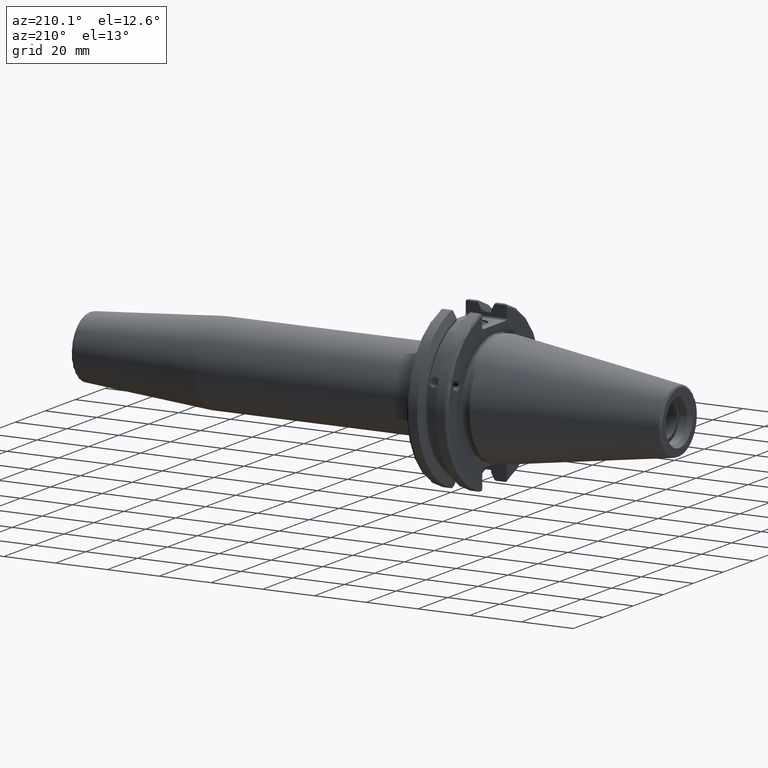
[diagram: clean part render]
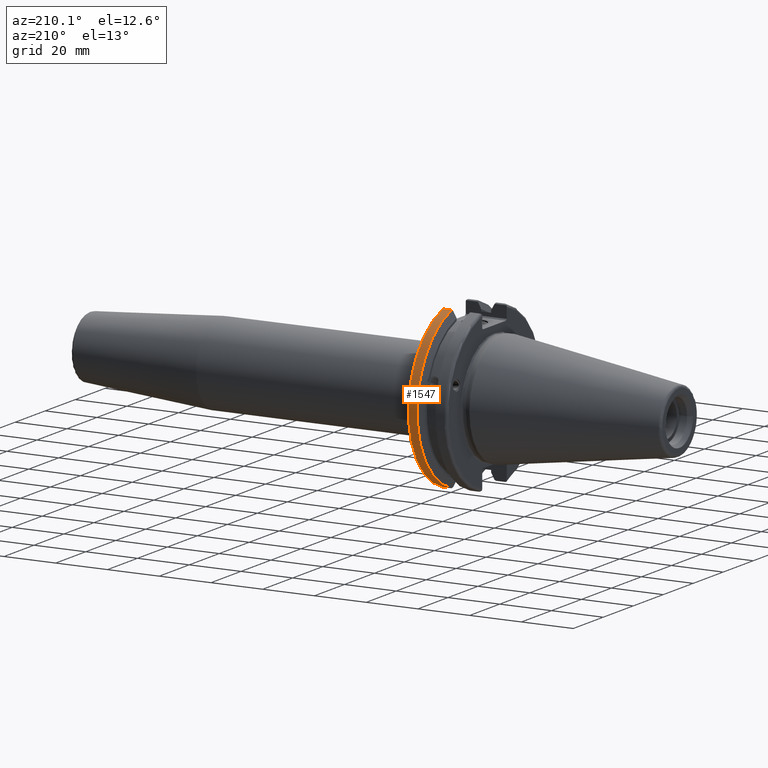
[diagram: same view with one face highlighted and labeled with its STEP entity id]
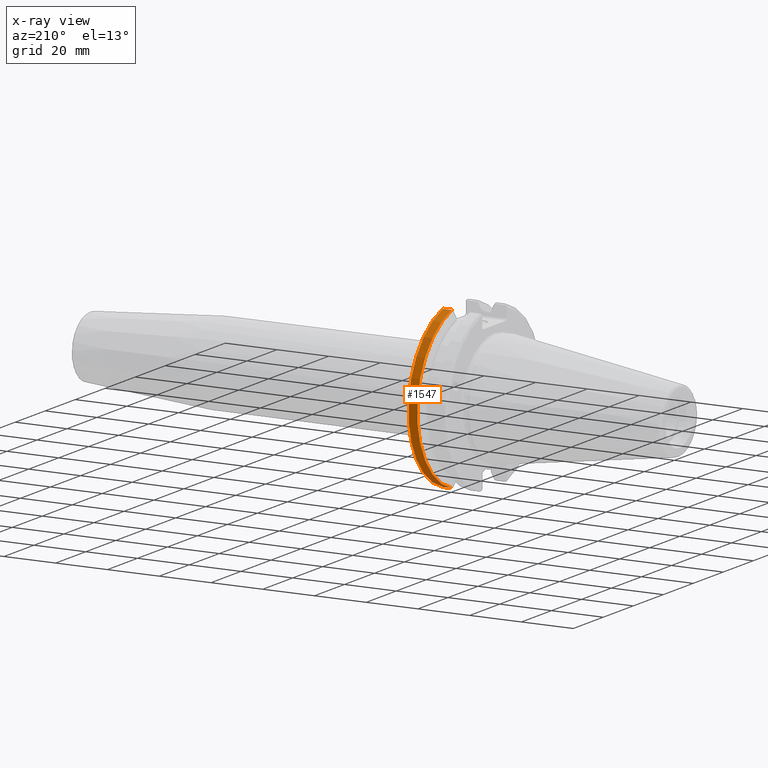
[diagram: x-ray of the same camera — body ghosted, the highlighted face saturated]
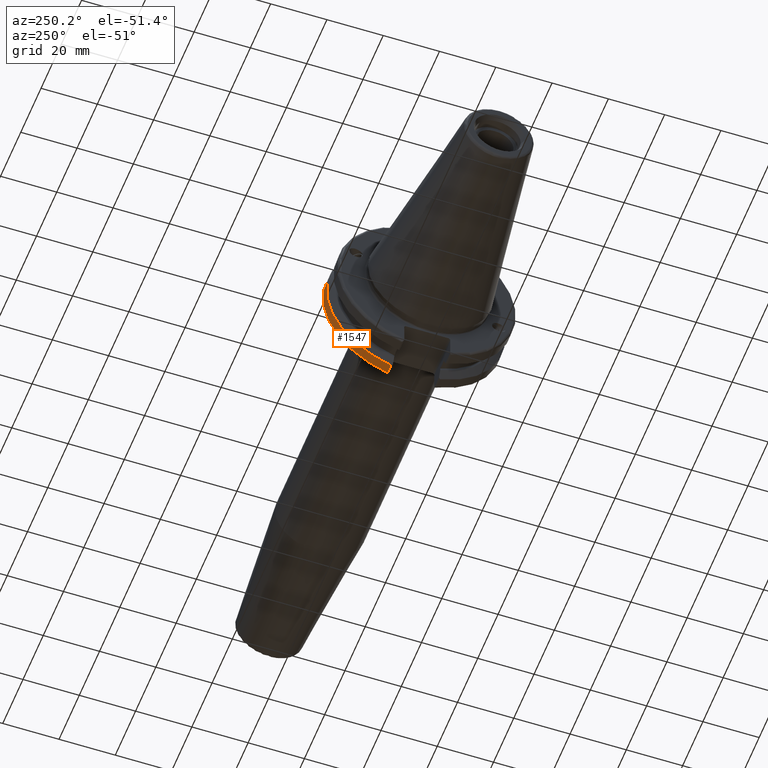
[diagram: same view with one face highlighted and labeled with its STEP entity id]
A machine part, auxiliary view. The second image highlights one B-rep face of the part: STEP entity #1547.
The next image is the same camera in x-ray: the body ghosted, the highlighted face saturated — about 0% of this face is hidden behind the body in this view.
A second angle (auxiliary view) of the same face is appended — the face is thin or edge-on in the first view.
In plain terms, the highlighted cylindrical surface (partial cylindrical patch) has radius 31.75 mm, axis along (1, 0, 0).
Its self-contained STEP definition (entity closure, byte-faithful):
#102=CYLINDRICAL_SURFACE('',#1737,31.75);
#220=LINE('',#2757,#314);
#248=LINE('',#2949,#342);
#314=VECTOR('',#2059,10.);
#342=VECTOR('',#2153,10.);
#431=FACE_OUTER_BOUND('',#532,.T.);
#532=EDGE_LOOP('',(#1391,#1392,#1393,#1394));
#603=CIRCLE('',#1702,31.75);
#614=CIRCLE('',#1738,31.75);
#739=VERTEX_POINT('',#2731);
#740=VERTEX_POINT('',#2740);
#742=VERTEX_POINT('',#2753);
#771=VERTEX_POINT('',#2948);
#929=EDGE_CURVE('',#739,#740,#603,.T.);
#933=EDGE_CURVE('',#742,#739,#220,.T.);
#989=EDGE_CURVE('',#740,#771,#248,.T.);
#991=EDGE_CURVE('',#742,#771,#614,.T.);
#1391=ORIENTED_EDGE('',*,*,#929,.F.);
#1392=ORIENTED_EDGE('',*,*,#933,.F.);
#1393=ORIENTED_EDGE('',*,*,#991,.T.);
#1394=ORIENTED_EDGE('',*,*,#989,.F.);
#1547=ADVANCED_FACE('',(#431),#102,.T.);
#1702=AXIS2_PLACEMENT_3D('',#2741,#2054,#2055);
#1737=AXIS2_PLACEMENT_3D('',#2953,#2154,#2155);
#1738=AXIS2_PLACEMENT_3D('',#2954,#2156,#2157);
#2054=DIRECTION('center_axis',(1.,0.,0.));
#2055=DIRECTION('ref_axis',(0.,1.,-6.12323399573677E-17));
#2059=DIRECTION('',(1.,0.,0.));
#2153=DIRECTION('',(-1.,0.,0.));
#2154=DIRECTION('center_axis',(1.,0.,0.));
#2155=DIRECTION('ref_axis',(0.,1.,0.));
#2156=DIRECTION('center_axis',(1.,0.,0.));
#2157=DIRECTION('ref_axis',(0.,0.,-1.));
#2731=CARTESIAN_POINT('',(18.05,8.67204822802685,-30.5427254764662));
#2740=CARTESIAN_POINT('',(18.05,8.67204822802685,30.5427254764662));
#2741=CARTESIAN_POINT('Origin',(18.05,0.,0.));
#2753=CARTESIAN_POINT('',(14.6602667690756,8.67204822802685,-30.5427254764662));
#2757=CARTESIAN_POINT('',(16.8551333845378,8.67204822802685,-30.5427254764662));
#2948=CARTESIAN_POINT('',(14.6602667690756,8.67204822802685,30.5427254764662));
#2949=CARTESIAN_POINT('',(16.8551333845378,8.67204822802685,30.5427254764662));
#2953=CARTESIAN_POINT('Origin',(16.8551333845378,0.,0.));
#2954=CARTESIAN_POINT('Origin',(14.6602667690756,0.,0.));